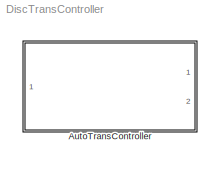
MODEL DiscTransController
KIND model
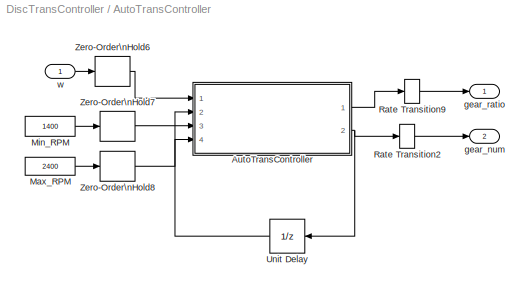
BLOCK [SubSystem] AutoTransController
  FunctionWithSeparateData = off
  MaskHideContents = off
  MinAlgLoopOccurrences = off
  Opaque = off
  Ports = [1, 2]
  PropExecContextOutsideSubsystem = off
  RTWSystemCode = Auto
  RequestExecContextInheritance = off
  SID = 1
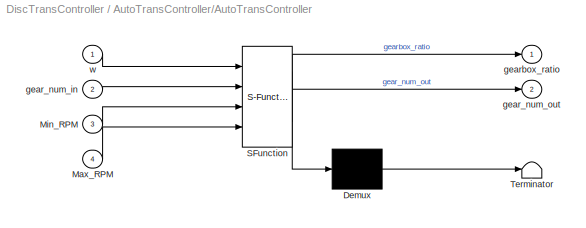
BLOCK [SubSystem] AutoTransController/AutoTransController
  ErrorFcn = Stateflow.Translate.translate
  FunctionWithSeparateData = off
  MaskDescription = Embedded MATLAB block
  MaskDisplay = bgColor = Simulink.Root.ColorString2Rgb(get_param(gcbh, 'BackgroundColor')); image(imread('private/eml_membrane_16.png','png','BackgroundColor',bgColor(1:3)),'center'); disp([10 10 'fcn']);
  MaskHideContents = off
  MaskIconFrame = on
  MaskIconOpaque = off
  MaskIconRotate = none
  MaskIconUnits = normalized
  MaskPortRotate = default
  MaskSelfModifiable = on
  MaskType = Stateflow
  MinAlgLoopOccurrences = off
  Opaque = off
  PermitHierarchicalResolution = ExplicitOnly
  Ports = [4, 2]
  PropExecContextOutsideSubsystem = off
  RTWSystemCode = Auto
  RequestExecContextInheritance = off
  SID = 5
  TreatAsAtomicUnit = on
BLOCK [Demux] AutoTransController/AutoTransController/ Demux 
  Outputs = 1
  Ports = [1, 1]
  SID = 5::475
BLOCK [S-Function] AutoTransController/AutoTransController/ SFunction 
  EnableBusSupport = on
  FunctionName = sf_sfun
  PortCounts = [4 3]
  Ports = [4, 3]
  SID = 5::474
  Tag = Stateflow S-Function DiscTransController 4
BLOCK [Terminator] AutoTransController/AutoTransController/ Terminator 
  SID = 5::477
BLOCK [Inport] AutoTransController/AutoTransController/Max_RPM
  IconDisplay = Port number
  Port = 4
  SID = 5::480
BLOCK [Inport] AutoTransController/AutoTransController/Min_RPM
  IconDisplay = Port number
  Port = 3
  SID = 5::479
BLOCK [Inport] AutoTransController/AutoTransController/gear_num_in
  IconDisplay = Port number
  Port = 2
  SID = 5::478
BLOCK [Outport] AutoTransController/AutoTransController/gear_num_out
  IconDisplay = Port number
  Port = 2
  SID = 5::482
BLOCK [Outport] AutoTransController/AutoTransController/gearbox_ratio
  IconDisplay = Port number
  SID = 5::481
BLOCK [Inport] AutoTransController/AutoTransController/w
  IconDisplay = Port number
  SID = 5::473
BLOCK [Constant] AutoTransController/Max_RPM
  SID = 14
  Value = 2400
BLOCK [Constant] AutoTransController/Min_RPM
  SID = 15
  Value = 1400
BLOCK [RateTransition] AutoTransController/Rate Transition2
  OutPortSampleTime = 0
  SID = 13
  X0 = 1
BLOCK [RateTransition] AutoTransController/Rate Transition9
  OutPortSampleTime = 0
  SID = 12
  X0 = 1
BLOCK [UnitDelay] AutoTransController/Unit Delay
  InputProcessing = Elements as channels (sample based)
  SID = 6
  SampleTime = -1
BLOCK [ZeroOrderHold] AutoTransController/Zero-Order\nHold6
  Priority = -1
  SID = 9
  SampleTime = 0.1
BLOCK [ZeroOrderHold] AutoTransController/Zero-Order\nHold7
  Priority = -1
  SID = 10
  SampleTime = 0.1
BLOCK [ZeroOrderHold] AutoTransController/Zero-Order\nHold8
  Priority = -1
  SID = 11
  SampleTime = 0.1
BLOCK [Outport] AutoTransController/gear_num
  IconDisplay = Port number
  Port = 2
  SID = 8
BLOCK [Outport] AutoTransController/gear_ratio
  IconDisplay = Port number
  SID = 7
BLOCK [Inport] AutoTransController/w
  IconDisplay = Port number
  SID = 2
LINE AutoTransController/AutoTransController/ Demux :1 -> AutoTransController/AutoTransController/ Terminator :1
LINE AutoTransController/AutoTransController/ SFunction :1 -> AutoTransController/AutoTransController/ Demux :1
LINE AutoTransController/AutoTransController/ SFunction :2 -> AutoTransController/AutoTransController/gearbox_ratio:1
LINE AutoTransController/AutoTransController/ SFunction :3 -> AutoTransController/AutoTransController/gear_num_out:1
LINE AutoTransController/AutoTransController/Max_RPM:1 -> AutoTransController/AutoTransController/ SFunction :4
LINE AutoTransController/AutoTransController/Min_RPM:1 -> AutoTransController/AutoTransController/ SFunction :3
LINE AutoTransController/AutoTransController/gear_num_in:1 -> AutoTransController/AutoTransController/ SFunction :2
LINE AutoTransController/AutoTransController/w:1 -> AutoTransController/AutoTransController/ SFunction :1
LINE AutoTransController/AutoTransController:1 -> AutoTransController/Rate Transition9:1
NET AutoTransController/AutoTransController:2 -> AutoTransController/Rate Transition2:1, AutoTransController/Unit Delay:1
LINE AutoTransController/Max_RPM:1 -> AutoTransController/Zero-Order\nHold8:1
LINE AutoTransController/Min_RPM:1 -> AutoTransController/Zero-Order\nHold7:1
LINE AutoTransController/Rate Transition2:1 -> AutoTransController/gear_num:1
LINE AutoTransController/Rate Transition9:1 -> AutoTransController/gear_ratio:1
LINE AutoTransController/Unit Delay:1 -> AutoTransController/AutoTransController:2
LINE AutoTransController/Zero-Order\nHold6:1 -> AutoTransController/AutoTransController:1
LINE AutoTransController/Zero-Order\nHold7:1 -> AutoTransController/AutoTransController:3
LINE AutoTransController/Zero-Order\nHold8:1 -> AutoTransController/AutoTransController:4
LINE AutoTransController/w:1 -> AutoTransController/Zero-Order\nHold6:1
note: NET lines group one-source signal fan-out (src -> all destinations, sorted); 1:1 wires keep LINE
CHART AutoTransController/AutoTransController states=1 transitions=1
  STATE_LABEL 'eML_blk_kernel()'
